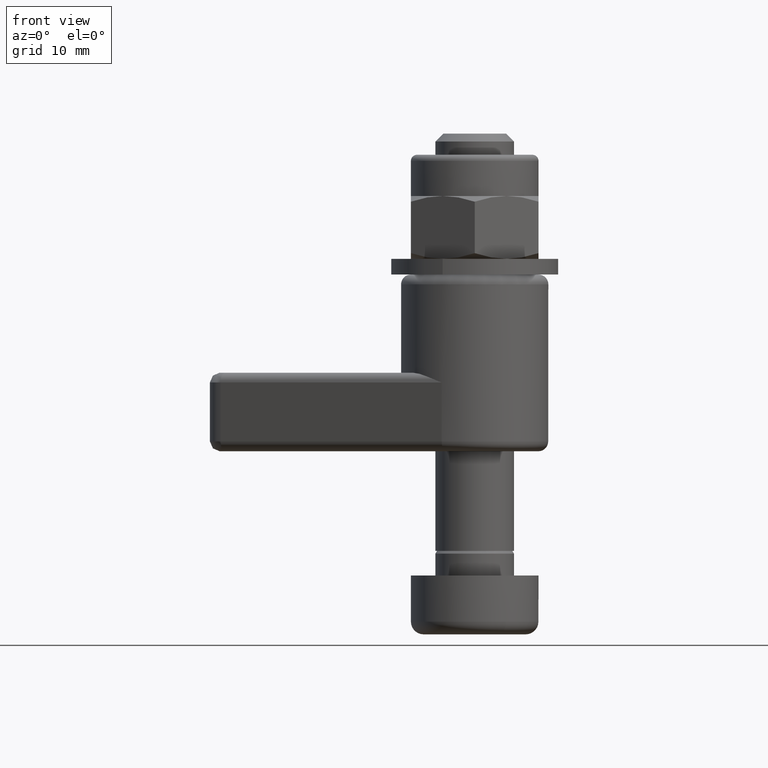
[diagram: clean part render]
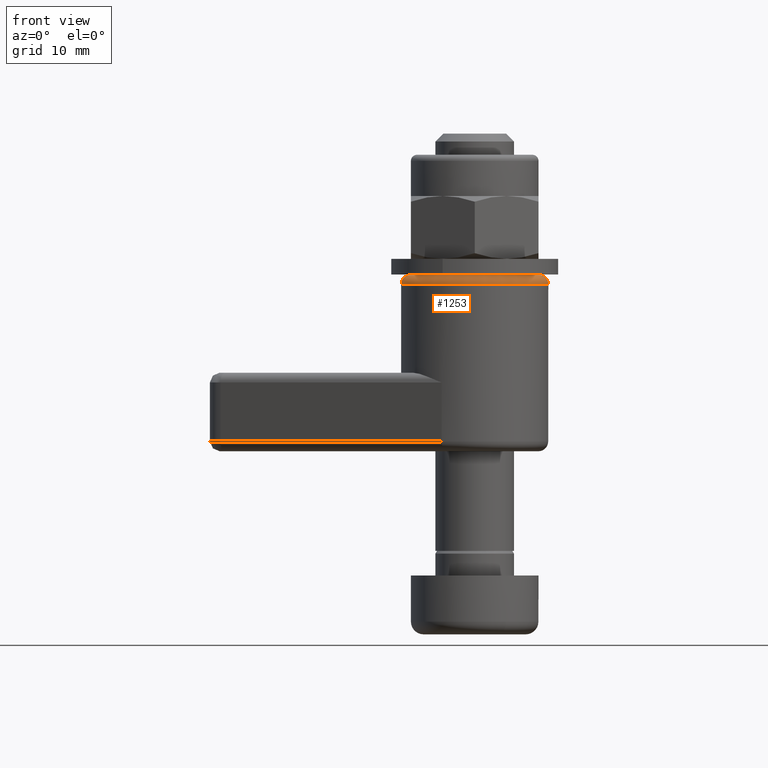
[diagram: same view with one face highlighted and labeled with its STEP entity id]
A machine part, front view. The second image highlights one B-rep face of the part: STEP entity #1253.
In plain terms, the highlighted toroidal blend (fillet) surface has major radius 6.5 mm and minor (blend) radius 1 mm.
Its self-contained STEP definition (entity closure, byte-faithful):
#98=TOROIDAL_SURFACE('',#1522,6.5,1.);
#320=FACE_OUTER_BOUND('',#406,.T.);
#406=EDGE_LOOP('',(#1069,#1070,#1071,#1072,#1073,#1074));
#487=CIRCLE('',#1514,7.5);
#488=CIRCLE('',#1515,7.5);
#492=CIRCLE('',#1523,6.5);
#493=CIRCLE('',#1524,1.);
#494=CIRCLE('',#1525,6.5);
#590=VERTEX_POINT('',#2310);
#591=VERTEX_POINT('',#2311);
#599=VERTEX_POINT('',#2348);
#600=VERTEX_POINT('',#2349);
#749=EDGE_CURVE('',#590,#591,#487,.T.);
#750=EDGE_CURVE('',#591,#590,#488,.T.);
#762=EDGE_CURVE('',#599,#600,#492,.T.);
#763=EDGE_CURVE('',#600,#591,#493,.T.);
#764=EDGE_CURVE('',#600,#599,#494,.T.);
#1069=ORIENTED_EDGE('',*,*,#762,.T.);
#1070=ORIENTED_EDGE('',*,*,#763,.T.);
#1071=ORIENTED_EDGE('',*,*,#750,.T.);
#1072=ORIENTED_EDGE('',*,*,#749,.T.);
#1073=ORIENTED_EDGE('',*,*,#763,.F.);
#1074=ORIENTED_EDGE('',*,*,#764,.T.);
#1253=ADVANCED_FACE('',(#320),#98,.T.);
#1514=AXIS2_PLACEMENT_3D('',#2312,#1832,#1833);
#1515=AXIS2_PLACEMENT_3D('',#2313,#1834,#1835);
#1522=AXIS2_PLACEMENT_3D('',#2347,#1854,#1855);
#1523=AXIS2_PLACEMENT_3D('',#2350,#1856,#1857);
#1524=AXIS2_PLACEMENT_3D('',#2351,#1858,#1859);
#1525=AXIS2_PLACEMENT_3D('',#2352,#1860,#1861);
#1832=DIRECTION('center_axis',(0.,0.,1.));
#1833=DIRECTION('ref_axis',(-1.,0.,0.));
#1834=DIRECTION('center_axis',(0.,0.,1.));
#1835=DIRECTION('ref_axis',(-1.,0.,0.));
#1854=DIRECTION('center_axis',(0.,0.,1.));
#1855=DIRECTION('ref_axis',(1.,0.,0.));
#1856=DIRECTION('center_axis',(0.,0.,-1.));
#1857=DIRECTION('ref_axis',(-1.,0.,0.));
#1858=DIRECTION('center_axis',(1.22464679914735E-16,-1.,0.));
#1859=DIRECTION('ref_axis',(-1.,-1.22464679914735E-16,0.));
#1860=DIRECTION('center_axis',(0.,0.,-1.));
#1861=DIRECTION('ref_axis',(-1.,0.,0.));
#2310=CARTESIAN_POINT('',(7.5,9.18485099360515E-16,17.));
#2311=CARTESIAN_POINT('',(-7.5,-9.18485099360515E-16,17.));
#2312=CARTESIAN_POINT('Origin',(0.,0.,17.));
#2313=CARTESIAN_POINT('Origin',(0.,0.,17.));
#2347=CARTESIAN_POINT('Origin',(0.,0.,17.));
#2348=CARTESIAN_POINT('',(6.5,-7.9602041944578E-16,18.));
#2349=CARTESIAN_POINT('',(-6.5,-7.9602041944578E-16,18.));
#2350=CARTESIAN_POINT('Origin',(0.,0.,18.));
#2351=CARTESIAN_POINT('Origin',(-6.5,-7.9602041944578E-16,17.));
#2352=CARTESIAN_POINT('Origin',(0.,0.,18.));